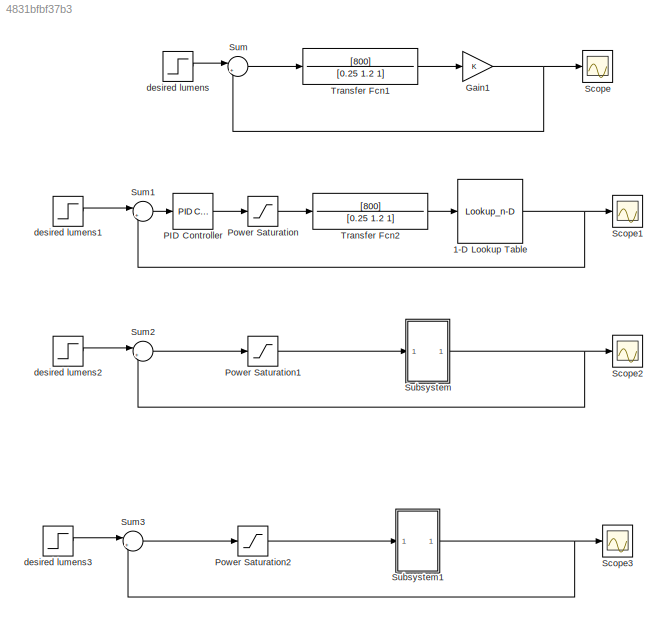
MODEL slx_4831bfbf37b3
KIND model
CONFIG AbsTol = auto
CONFIG EnableMultiTasking = on
CONFIG FixedStep = 0.002
CONFIG MaxStep = auto
CONFIG MinStep = .0001
CONFIG RelTol = 1e-3
CONFIG SampleTimeConstraint = Unconstrained
CONFIG SolverName = VariableStepAuto
CONFIG StartTime = 0.0
CONFIG StopTime = 1000
BLOCK [Lookup_n-D] 1-D Lookup Table
  BreakpointsForDimension1 = [10;20;30;75;100;150]
  InputPortMap = u0
  InternalRulePriority = Speed
  NumberOfTableDimensions = 1
  RndMeth = Simplest
  Table = [0;150;200;600;1200;2500]
BLOCK [Gain] Gain1
BLOCK [Reference] PID Controller  REF=slpidlib/PID Controller
  LibrarySourceBlock = simulink/Continuous/PID Controller
  SourceBlock = slpidlib/PID Controller
  SourceType = PID 1dof
BLOCK [Saturate] Power Saturation
  LowerLimit = 0
  UpperLimit = 60
BLOCK [Saturate] Power Saturation1
  LowerLimit = 0
  UpperLimit = 60
BLOCK [Saturate] Power Saturation2
  LowerLimit = 0
  UpperLimit = 60
BLOCK [Scope] Scope
  Floating = off
  NumInputPorts = 1
  ScopeSpecificationString = Simulink.scopes.TimeScopeBlockCfg('CurrentConfiguration', extmgr.ConfigurationSet(extmgr.Configuration('Core','General UI',true),extmgr.Configuration('Core','Source UI',true),extmgr.Configuration('Sources','WiredSimulink',true,'DataLoggingVariableName','ScopeData1'),extmgr.Configuration('Visuals','Time Domain',true,'SerializedDisplays',{struct('MinYLimReal','-133.50893','MaxYLimReal','1201.58037',...<+1382ch>
BLOCK [Scope] Scope1
  Floating = off
  NumInputPorts = 1
  ScopeSpecificationString = Simulink.scopes.TimeScopeBlockCfg('CurrentConfiguration', extmgr.ConfigurationSet(extmgr.Configuration('Core','General UI',true),extmgr.Configuration('Core','Source UI',true),extmgr.Configuration('Sources','WiredSimulink',true),extmgr.Configuration('Visuals','Time Domain',true,'SerializedDisplays',{struct('MinYLimReal','-158.12001','MaxYLimReal','1440.6946','YLabelReal','','MinYLimMag',' 0.00000',...<+1422ch>
BLOCK [Scope] Scope2
  Floating = off
  NumInputPorts = 1
  ScopeSpecificationString = Simulink.scopes.TimeScopeBlockCfg('CurrentConfiguration', extmgr.ConfigurationSet(extmgr.Configuration('Core','General UI',true),extmgr.Configuration('Core','Source UI',true),extmgr.Configuration('Sources','WiredSimulink',true,'DataLoggingVariableName','ScopeData2'),extmgr.Configuration('Visuals','Time Domain',true,'SerializedDisplays',{struct('MinYLimReal','-158.12001','MaxYLimReal','1440.6946','...<+1428ch>
BLOCK [Scope] Scope3
  Floating = off
  NumInputPorts = 1
  ScopeSpecificationString = Simulink.scopes.TimeScopeBlockCfg('CurrentConfiguration', extmgr.ConfigurationSet(extmgr.Configuration('Core','General UI',true),extmgr.Configuration('Core','Source UI',true),extmgr.Configuration('Sources','WiredSimulink',true,'DataLoggingVariableName','ScopeData3'),extmgr.Configuration('Visuals','Time Domain',true,'SerializedDisplays',{struct('MinYLimReal','-158.12001','MaxYLimReal','1440.6946','...<+1429ch>
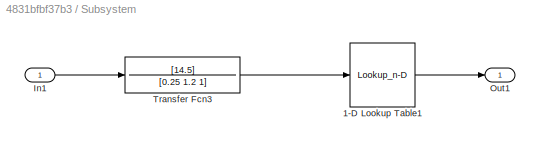
BLOCK [SubSystem] Subsystem
BLOCK [Lookup_n-D] Subsystem/1-D Lookup Table1
  BreakpointsForDimension1 = [10;20;30;75;100;150]
  InputPortMap = u0
  InternalRulePriority = Speed
  NumberOfTableDimensions = 1
  RndMeth = Simplest
  Table = [0;150;200;600;1200;2500]
BLOCK [Inport] Subsystem/In1
BLOCK [Outport] Subsystem/Out1
BLOCK [TransferFcn] Subsystem/Transfer Fcn3
  Denominator = [0.25 1.2 1]
  Numerator = [14.5]
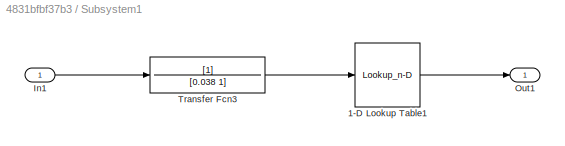
BLOCK [SubSystem] Subsystem1
BLOCK [Lookup_n-D] Subsystem1/1-D Lookup Table1
  BreakpointsForDimension1 = [10;20;30;75;100;150]
  InputPortMap = u0
  InternalRulePriority = Speed
  NumberOfTableDimensions = 1
  RndMeth = Simplest
  Table = [0;150;200;600;1200;2500]
BLOCK [Inport] Subsystem1/In1
BLOCK [Outport] Subsystem1/Out1
BLOCK [TransferFcn] Subsystem1/Transfer Fcn3
  Denominator = [0.038 1]
BLOCK [Sum] Sum
  Inputs = |+-
BLOCK [Sum] Sum1
  Inputs = |+-
BLOCK [Sum] Sum2
  Inputs = |+-
BLOCK [Sum] Sum3
  Inputs = |+-
BLOCK [TransferFcn] Transfer Fcn1
  Denominator = [0.25 1.2 1]
  Numerator = [800]
BLOCK [TransferFcn] Transfer Fcn2
  Denominator = [0.25 1.2 1]
  Numerator = [800]
BLOCK [Step] desired lumens
  After = 600
  SampleTime = 0
BLOCK [Step] desired lumens1
  After = 600
  SampleTime = 0
BLOCK [Step] desired lumens2
  After = 600
  SampleTime = 0
BLOCK [Step] desired lumens3
  After = 600
  SampleTime = 0
NET 1-D Lookup Table:1 -> Scope1:1, Sum1:2
NET Gain1:1 -> Scope:1, Sum:2
LINE PID Controller:1 -> Power Saturation:1
LINE Power Saturation1:1 -> Subsystem:1
LINE Power Saturation2:1 -> Subsystem1:1
LINE Power Saturation:1 -> Transfer Fcn2:1
LINE Subsystem/1-D Lookup Table1:1 -> Subsystem/Out1:1
LINE Subsystem/In1:1 -> Subsystem/Transfer Fcn3:1
LINE Subsystem/Transfer Fcn3:1 -> Subsystem/1-D Lookup Table1:1
LINE Subsystem1/1-D Lookup Table1:1 -> Subsystem1/Out1:1
LINE Subsystem1/In1:1 -> Subsystem1/Transfer Fcn3:1
LINE Subsystem1/Transfer Fcn3:1 -> Subsystem1/1-D Lookup Table1:1
NET Subsystem1:1 -> Scope3:1, Sum3:2
NET Subsystem:1 -> Scope2:1, Sum2:2
LINE Sum1:1 -> PID Controller:1
LINE Sum2:1 -> Power Saturation1:1
LINE Sum3:1 -> Power Saturation2:1
LINE Sum:1 -> Transfer Fcn1:1
LINE Transfer Fcn1:1 -> Gain1:1
LINE Transfer Fcn2:1 -> 1-D Lookup Table:1
LINE desired lumens1:1 -> Sum1:1
LINE desired lumens2:1 -> Sum2:1
LINE desired lumens3:1 -> Sum3:1
LINE desired lumens:1 -> Sum:1
note: NET lines group one-source signal fan-out (src -> all destinations, sorted); 1:1 wires keep LINE
